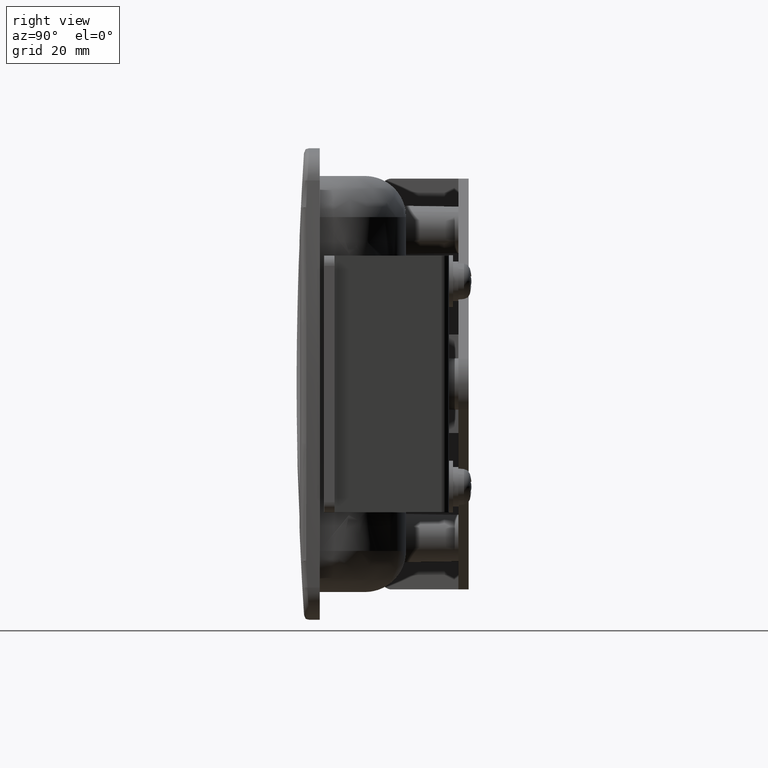
[diagram: clean part render]
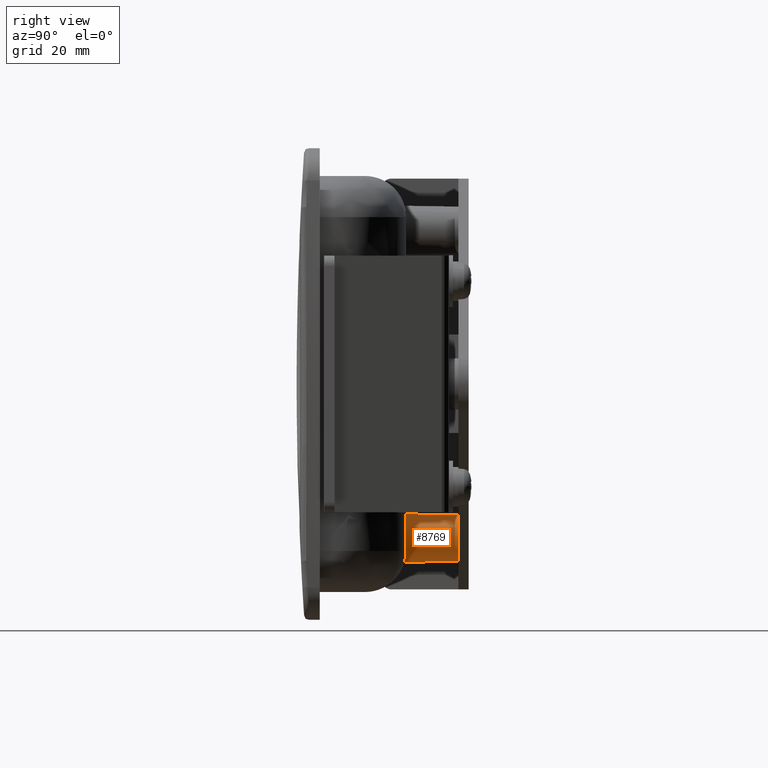
[diagram: same view with one face highlighted and labeled with its STEP entity id]
A machine part, right view. The second image highlights one B-rep face of the part: STEP entity #8769.
In plain terms, the highlighted face is a freeform B-spline surface patch.
Its self-contained STEP definition (entity closure, byte-faithful):
#8606=CARTESIAN_POINT('',(-25.564170135330411,-1.737203048230801,-33.726623571436541));
#8607=CARTESIAN_POINT('',(-22.440196464043471,-1.737203048230800,-35.876245008160232));
#8608=CARTESIAN_POINT('',(-19.778319514186631,-1.737203048230800,-33.175412743109923));
#8609=CARTESIAN_POINT('',(-16.603106771076718,-1.737203048230800,-29.953732257296558));
#8610=CARTESIAN_POINT('',(-19.824787256890080,-1.737203048230800,-26.778519514186630));
#8611=CARTESIAN_POINT('',(-23.046467742703442,-1.737203048230800,-23.603306771076713));
#8612=CARTESIAN_POINT('',(-26.221680485813369,-1.737203048230800,-26.824987256890079));
#8613=CARTESIAN_POINT('',(-25.673613026072768,-12.781244946331419,-33.885673301471698));
#8614=CARTESIAN_POINT('',(-22.416303151981726,-12.781244946331414,-36.127044026121020));
#8615=CARTESIAN_POINT('',(-19.640813027952561,-12.781244946331419,-33.310935911615722));
#8616=CARTESIAN_POINT('',(-16.330077116336852,-12.781244946331418,-29.951748939568272));
#8617=CARTESIAN_POINT('',(-19.689264088384292,-12.781244946331419,-26.641013027952560));
#8618=CARTESIAN_POINT('',(-23.048451060431731,-12.781244946331418,-23.330277116336848));
#8619=CARTESIAN_POINT('',(-26.359186972047439,-12.781244946331419,-26.689464088384291));
#8627=(BOUNDED_SURFACE()B_SPLINE_SURFACE(2,1,((#8606,#8613),(#8607,#8614),(#8608,#8615),(#8609,#8616),(#8610,#8617),(#8611,#8618),(#8612,#8619)),.UNSPECIFIED.,.F.,.F.,.U.)B_SPLINE_SURFACE_WITH_KNOTS((3,2,2,3),(2,2),(0.0,6.876766069910852,14.691272967536820,22.505779865162790),(0.0,11.045729310912890),.UNSPECIFIED.)GEOMETRIC_REPRESENTATION_ITEM()RATIONAL_B_SPLINE_SURFACE(((0.938140952186599,0.938140952186599),(0.742253967444162,0.742253967444162),(1.0,1.0),(0.707106781186548,0.707106781186548),(1.0,1.0),(0.707106781186548,0.707106781186548),(1.0,1.0)))REPRESENTATION_ITEM('')SURFACE());
#8628=CARTESIAN_POINT('',(-23.0,-2.0,-34.528200000000112));
#8629=VERTEX_POINT('',#8628);
#8630=CARTESIAN_POINT('',(-25.566774236181129,-1.999998859321053,-33.730407841550289));
#8631=VERTEX_POINT('',#8630);
#8632=CARTESIAN_POINT('',(-23.0,-2.0,-34.528200000000112));
#8633=CARTESIAN_POINT('',(-23.483292693864691,-1.999999785223885,-34.528464079326817));
#8634=CARTESIAN_POINT('',(-24.392770572891390,-1.999999381050325,-34.381083302181743));
#8635=CARTESIAN_POINT('',(-25.215568831329939,-1.999999015397352,-33.972262052524123));
#8636=CARTESIAN_POINT('',(-25.566774236181129,-1.999998859321053,-33.730407841550289));
#8637=B_SPLINE_CURVE_WITH_KNOTS('',3,(#8632,#8633,#8634,#8635,#8636),.UNSPECIFIED.,.F.,.U.,(4,1,4),(0.000000013358928,1.449807824820970,2.729056641213715),.UNSPECIFIED.);
#8638=EDGE_CURVE('',#8629,#8631,#8637,.T.);
#8639=ORIENTED_EDGE('',*,*,#8638,.F.);
#8640=CARTESIAN_POINT('',(-18.472000000000161,-2.0,-30.000201560028572));
#8641=VERTEX_POINT('',#8640);
#8642=CARTESIAN_POINT('',(-18.472000000000161,-2.0,-30.000201560028572));
#8643=CARTESIAN_POINT('',(-18.471888510061280,-1.999999999999996,-30.407691998089561));
#8644=CARTESIAN_POINT('',(-18.587722537730968,-2.000000000000005,-31.259696252625030));
#8645=CARTESIAN_POINT('',(-19.035311315721671,-1.999999999999993,-32.269626151711122));
#8646=CARTESIAN_POINT('',(-19.638136811660129,-2.000000000000014,-33.071805983462930));
#8647=CARTESIAN_POINT('',(-20.200703691552850,-1.999999999999979,-33.588039093052863));
#8648=CARTESIAN_POINT('',(-20.856895148243439,-2.000000000000016,-34.009172191641873));
#8649=CARTESIAN_POINT('',(-21.740649237664162,-2.000000000000007,-34.401111693927909));
#8650=CARTESIAN_POINT('',(-22.499859321642070,-1.999999999999952,-34.528475835061244));
#8651=CARTESIAN_POINT('',(-23.0,-2.0,-34.528200000000112));
#8652=B_SPLINE_CURVE_WITH_KNOTS('',3,(#8642,#8643,#8644,#8645,#8646,#8647,#8648,#8649,#8650,#8651),.UNSPECIFIED.,.F.,.U.,(4,1,1,1,1,1,1,4),(0.000000131321306,1.222466325932602,2.556100878321436,3.278483920677252,4.223084541093428,4.834347973305592,5.612300791332296,7.112609516804423),.UNSPECIFIED.);
#8653=EDGE_CURVE('',#8641,#8629,#8652,.T.);
#8654=ORIENTED_EDGE('',*,*,#8653,.F.);
#8655=CARTESIAN_POINT('',(-23.0,-2.0,-25.472199999999891));
#8656=VERTEX_POINT('',#8655);
#8657=CARTESIAN_POINT('',(-23.0,-2.0,-25.472199999999891));
#8658=CARTESIAN_POINT('',(-22.722172613654550,-1.999999999999998,-25.472188698108521));
#8659=CARTESIAN_POINT('',(-22.092396822620561,-2.000000000000004,-25.530281774480400));
#8660=CARTESIAN_POINT('',(-21.326503403329902,-1.999999999999997,-25.767759702860818));
#8661=CARTESIAN_POINT('',(-20.583159073970720,-2.000000000000006,-26.147690173345001));
#8662=CARTESIAN_POINT('',(-19.906965241472069,-1.999999999999987,-26.642738571633210));
#8663=CARTESIAN_POINT('',(-19.318153548317781,-2.000000000000005,-27.316931891308290));
#8664=CARTESIAN_POINT('',(-18.850564394771361,-2.000000000000001,-28.119264779891910));
#8665=CARTESIAN_POINT('',(-18.547998796496842,-1.999999999999990,-28.981477526544101));
#8666=CARTESIAN_POINT('',(-18.471948676351872,-2.000000000000019,-29.666800197298318));
#8667=CARTESIAN_POINT('',(-18.472000000000161,-2.0,-30.000201560028572));
#8668=B_SPLINE_CURVE_WITH_KNOTS('',3,(#8657,#8658,#8659,#8660,#8661,#8662,#8663,#8664,#8665,#8666,#8667),.UNSPECIFIED.,.F.,.U.,(4,1,1,1,1,1,1,1,4),(0.000000130755208,0.833497465737755,1.889290086186653,2.389398527136050,3.334075063133926,4.389797374876599,5.056614796706437,6.112404816042742,7.112611275331439),.UNSPECIFIED.);
#8669=EDGE_CURVE('',#8656,#8641,#8668,.T.);
#8670=ORIENTED_EDGE('',*,*,#8669,.F.);
#8671=CARTESIAN_POINT('',(-26.224952728519309,-1.999998485587997,-26.821762146179569));
#8672=VERTEX_POINT('',#8671);
#8673=CARTESIAN_POINT('',(-26.224952728519309,-1.999998485587997,-26.821762146179569));
#8674=CARTESIAN_POINT('',(-25.910144297596450,-1.999998633419515,-26.502068618382999));
#8675=CARTESIAN_POINT('',(-25.350747743674400,-1.999998896107668,-26.082458902963889));
#8676=CARTESIAN_POINT('',(-24.252269129082968,-1.999999411944437,-25.598616508509650));
#8677=CARTESIAN_POINT('',(-23.504792834739540,-1.999999762953328,-25.471832186927202));
#8678=CARTESIAN_POINT('',(-23.0,-2.0,-25.472199999999891));
#8679=B_SPLINE_CURVE_WITH_KNOTS('',3,(#8673,#8674,#8675,#8676,#8677,#8678),.UNSPECIFIED.,.F.,.U.,(4,1,1,4),(0.000000033293460,1.345949521848366,2.074997735920261,3.589197236861376),.UNSPECIFIED.);
#8680=EDGE_CURVE('',#8672,#8656,#8679,.T.);
#8681=ORIENTED_EDGE('',*,*,#8680,.F.);
#8682=CARTESIAN_POINT('',(-26.351950099301160,-12.199999204535390,-26.696596713363942));
#8683=VERTEX_POINT('',#8682);
#8684=CARTESIAN_POINT('',(-26.224952728519309,-1.999998485587997,-26.821762146179569));
#8685=CARTESIAN_POINT('',(-26.351950099301160,-12.199999204535390,-26.696596713363942));
#8686=QUASI_UNIFORM_CURVE('',1,(#8684,#8685),.UNSPECIFIED.,.F.,.U.);
#8687=EDGE_CURVE('',#8672,#8683,#8686,.T.);
#8688=ORIENTED_EDGE('',*,*,#8687,.T.);
#8689=CARTESIAN_POINT('',(-21.699459668866020,-12.199999999999999,-25.477152451978590));
#8690=VERTEX_POINT('',#8689);
#8691=CARTESIAN_POINT('',(-21.699459668866020,-12.199999999999999,-25.477152451978590));
#8692=CARTESIAN_POINT('',(-21.977408206601471,-12.199999944353999,-25.397218895340099));
#8693=CARTESIAN_POINT('',(-22.625924243801119,-12.199999817881579,-25.273949988300469));
#8694=CARTESIAN_POINT('',(-23.711117455612442,-12.199999618462771,-25.297392698086089));
#8695=CARTESIAN_POINT('',(-24.732968863087070,-12.199999444730370,-25.583652398339339));
#8696=CARTESIAN_POINT('',(-25.640399740334100,-12.199999302737019,-26.068926474886251));
#8697=CARTESIAN_POINT('',(-26.112057626255201,-12.199999235948500,-26.453111939165971));
#8698=CARTESIAN_POINT('',(-26.351950099301160,-12.199999204535390,-26.696596713363942));
#8699=B_SPLINE_CURVE_WITH_KNOTS('',3,(#8691,#8692,#8693,#8694,#8695,#8696,#8697,#8698),.UNSPECIFIED.,.F.,.U.,(4,1,1,1,1,4),(0.000000052123172,0.867662051504194,1.971981965014272,3.234030078070174,4.022834721339975,5.048262564730793),.UNSPECIFIED.);
#8700=EDGE_CURVE('',#8690,#8683,#8699,.T.);
#8701=ORIENTED_EDGE('',*,*,#8700,.F.);
#8702=CARTESIAN_POINT('',(-19.012473920515600,-12.199999999999999,-32.500000000000000));
#8703=VERTEX_POINT('',#8702);
#8704=CARTESIAN_POINT('',(-19.012473920515600,-12.199999999999999,-32.500000000000000));
#8705=CARTESIAN_POINT('',(-18.783405283785541,-12.200000000000021,-32.134916401255232));
#8706=CARTESIAN_POINT('',(-18.492548313837919,-12.199999999999990,-31.487436798581381));
#8707=CARTESIAN_POINT('',(-18.276996599967319,-12.200000000000029,-30.415982067547660));
#8708=CARTESIAN_POINT('',(-18.287712516159740,-12.199999999999960,-29.456138494904231));
#8709=CARTESIAN_POINT('',(-18.519565588217461,-12.200000000000079,-28.457414538972440));
#8710=CARTESIAN_POINT('',(-18.871857957046661,-12.200000000000021,-27.690228021980669));
#8711=CARTESIAN_POINT('',(-19.375371245345779,-12.200000000000040,-26.960566069004980));
#8712=CARTESIAN_POINT('',(-19.903547567148689,-12.199999999999960,-26.423962108333349));
#8713=CARTESIAN_POINT('',(-20.699235496033729,-12.200000000000060,-25.856201540616219));
#8714=CARTESIAN_POINT('',(-21.285198670083950,-12.199999999999960,-25.596109446524942));
#8715=CARTESIAN_POINT('',(-21.699459668866020,-12.199999999999999,-25.477152451978590));
#8716=B_SPLINE_CURVE_WITH_KNOTS('',3,(#8704,#8705,#8706,#8707,#8708,#8709,#8710,#8711,#8712,#8713,#8714,#8715),.UNSPECIFIED.,.F.,.U.,(4,1,1,1,1,1,1,1,1,4),(0.000000167742407,1.292946967200692,2.109555285798817,3.266413440747873,4.151100121259248,5.171812259476038,5.784249152788461,6.805027986359254,7.417480919146377,8.710427078984640),.UNSPECIFIED.);
#8717=EDGE_CURVE('',#8703,#8690,#8716,.T.);
#8718=ORIENTED_EDGE('',*,*,#8717,.F.);
#8719=CARTESIAN_POINT('',(-25.669041312636541,-12.319751889994540,-33.879029381399448));
#8720=VERTEX_POINT('',#8719);
#8721=CARTESIAN_POINT('',(-19.012473920515600,-12.199999999999999,-32.500000000000000));
#8722=CARTESIAN_POINT('',(-19.119215099511170,-12.200000000966901,-32.670266919807133));
#8723=CARTESIAN_POINT('',(-19.235446945812068,-12.205409208838409,-32.831727028685272));
#8724=CARTESIAN_POINT('',(-19.486144302395260,-12.223999526214151,-33.137919243884539));
#8725=CARTESIAN_POINT('',(-19.620612394607150,-12.237192273000840,-33.282648210146128));
#8726=CARTESIAN_POINT('',(-19.836142786286040,-12.260847688701320,-33.487203733733899));
#8727=CARTESIAN_POINT('',(-19.910298035012222,-12.269379293838711,-33.553292830555492));
#8728=CARTESIAN_POINT('',(-20.025084608185910,-12.282909172345001,-33.649223490092027));
#8729=CARTESIAN_POINT('',(-20.063994350773520,-12.287547887627751,-33.680706358928049));
#8730=CARTESIAN_POINT('',(-20.142490565803818,-12.296966146552110,-33.742184251282517));
#8731=CARTESIAN_POINT('',(-20.182126244149210,-12.301751358870550,-33.772223203258150));
#8732=CARTESIAN_POINT('',(-20.382225452198000,-12.325948919146780,-33.918969594679162));
#8733=CARTESIAN_POINT('',(-20.548427017885231,-12.346162019712850,-34.025377787338464));
#8734=CARTESIAN_POINT('',(-20.893040726714371,-12.385767490793819,-34.216775470155383));
#8735=CARTESIAN_POINT('',(-21.071451994449969,-12.405166364378900,-34.301765224348493));
#8736=CARTESIAN_POINT('',(-21.348668048925120,-12.431933768938199,-34.412744489698163));
#8737=CARTESIAN_POINT('',(-21.442940075156219,-12.440487118096589,-34.447044568186108));
#8738=CARTESIAN_POINT('',(-21.632162778069439,-12.456331618816041,-34.509134719840830));
#8739=CARTESIAN_POINT('',(-21.727370290213031,-12.463650656975350,-34.537045654794781));
#8740=CARTESIAN_POINT('',(-22.014763746779380,-12.483523604435380,-34.611546680874071));
#8741=CARTESIAN_POINT('',(-22.208714541119111,-12.493981252503600,-34.648941791727587));
#8742=CARTESIAN_POINT('',(-22.503216792385960,-12.504620266367130,-34.686617271766657));
#8743=CARTESIAN_POINT('',(-22.601981738299440,-12.507328464963940,-34.696097005732007));
#8744=CARTESIAN_POINT('',(-22.800732786406179,-12.510961496505139,-34.708783365777307));
#8745=CARTESIAN_POINT('',(-22.900971585827310,-12.511885883525011,-34.711988856086293));
#8746=CARTESIAN_POINT('',(-23.201871177678719,-12.511862388130661,-34.711907089465761));
#8747=CARTESIAN_POINT('',(-23.400296720196081,-12.508125478508560,-34.699032554437267));
#8748=CARTESIAN_POINT('',(-23.792987182479958,-12.493899882746980,-34.648650367503933));
#8749=CARTESIAN_POINT('',(-23.987251687526719,-12.483410703514521,-34.611140211471657));
#8750=CARTESIAN_POINT('',(-24.275536459971018,-12.463435975068929,-34.536231045898582));
#8751=CARTESIAN_POINT('',(-24.371111401529920,-12.456074097091550,-34.508144751514692));
#8752=CARTESIAN_POINT('',(-24.561206021550429,-12.440122351081589,-34.445593122374042));
#8753=CARTESIAN_POINT('',(-24.654841447697560,-12.431606879882841,-34.411414071820843));
#8754=CARTESIAN_POINT('',(-24.931042558254561,-12.404900406311320,-34.300607751610080));
#8755=CARTESIAN_POINT('',(-25.109198110107648,-12.385519803610711,-34.215655963894157));
#8756=CARTESIAN_POINT('',(-25.414161501148140,-12.350453768104909,-34.046054740817418));
#8757=CARTESIAN_POINT('',(-25.543326720009102,-12.334944455520549,-33.965866815836932));
#8758=CARTESIAN_POINT('',(-25.669041312636541,-12.319751889994540,-33.879029381399448));
#8759=B_SPLINE_CURVE_WITH_KNOTS('',3,(#8721,#8722,#8723,#8724,#8725,#8726,#8727,#8728,#8729,#8730,#8731,#8732,#8733,#8734,#8735,#8736,#8737,#8738,#8739,#8740,#8741,#8742,#8743,#8744,#8745,#8746,#8747,#8748,#8749,#8750,#8751,#8752,#8753,#8754,#8755,#8756,#8757,#8758),.UNSPECIFIED.,.F.,.U.,(4,2,2,2,2,2,2,2,2,2,2,2,2,2,2,2,2,2,4),(0.0,0.062500000000005,0.125000000000009,0.156250000000011,0.171875000000012,0.187500000000013,0.250000000000013,0.312500000000013,0.343750000000013,0.375000000000012,0.437500000000011,0.468750000000010,0.500000000000009,0.562500000000007,0.625000000000005,0.656250000000003,0.687500000000002,0.750000000000001,0.798067341733281),.UNSPECIFIED.);
#8760=EDGE_CURVE('',#8703,#8720,#8759,.T.);
#8761=ORIENTED_EDGE('',*,*,#8760,.T.);
#8762=CARTESIAN_POINT('',(-25.566774236181129,-1.999998859321053,-33.730407841550289));
#8763=CARTESIAN_POINT('',(-25.669041312636541,-12.319751889994540,-33.879029381399448));
#8764=QUASI_UNIFORM_CURVE('',1,(#8762,#8763),.UNSPECIFIED.,.F.,.U.);
#8765=EDGE_CURVE('',#8631,#8720,#8764,.T.);
#8766=ORIENTED_EDGE('',*,*,#8765,.F.);
#8767=EDGE_LOOP('',(#8639,#8654,#8670,#8681,#8688,#8701,#8718,#8761,#8766));
#8768=FACE_OUTER_BOUND('',#8767,.T.);
#8769=ADVANCED_FACE('',(#8768),#8627,.T.);